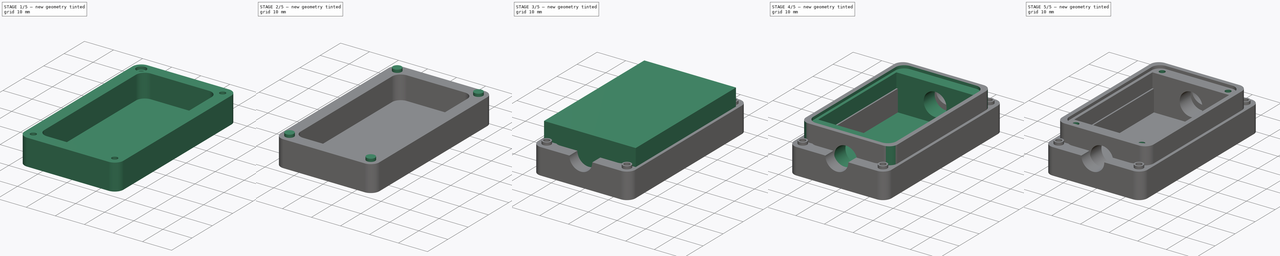
[diagram: build sequence overview — one tinted view per stage of 5, left to right]
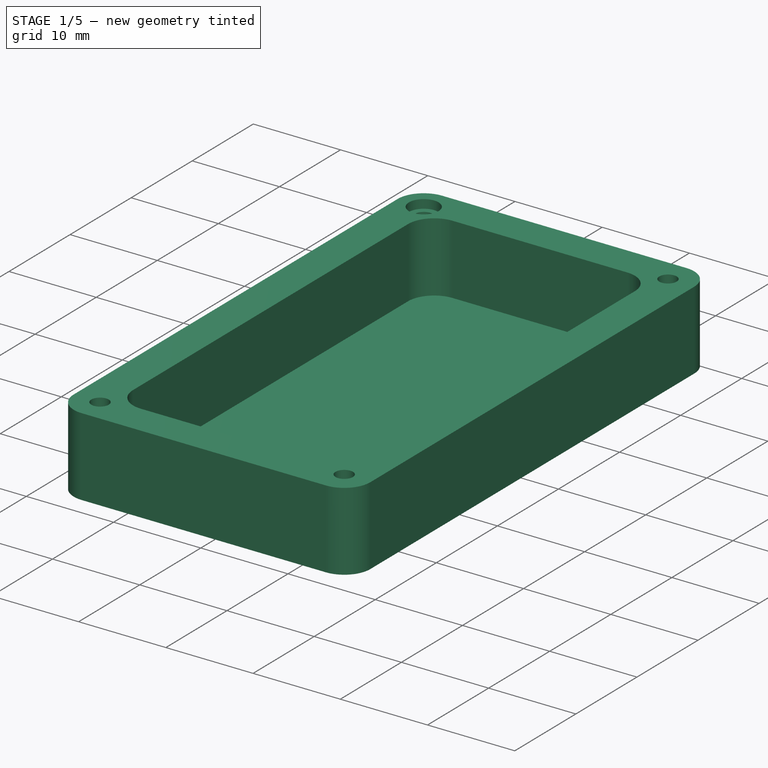
[diagram: stage 1 of 5 — iso view after this stage's code; geometry added in this stage tinted green]
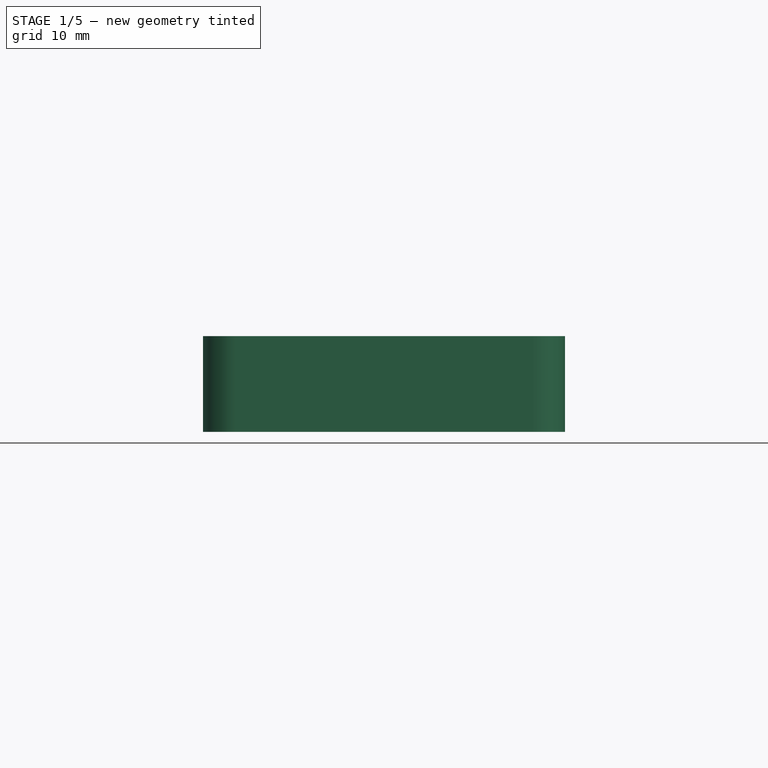
[diagram: stage 1 of 5 — front view after this stage's code; geometry added in this stage tinted green]
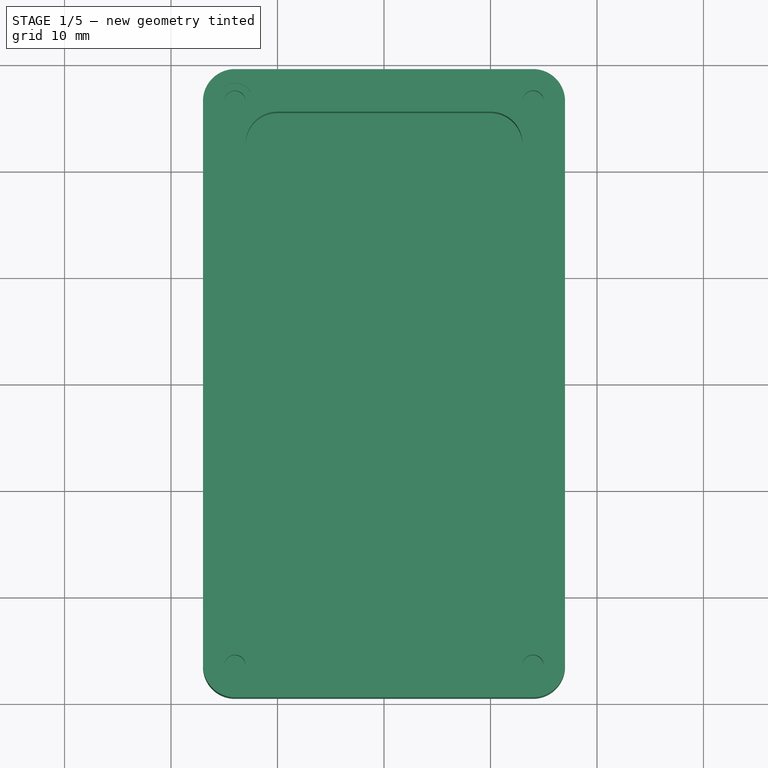
[diagram: stage 1 of 5 — top view after this stage's code; geometry added in this stage tinted green]
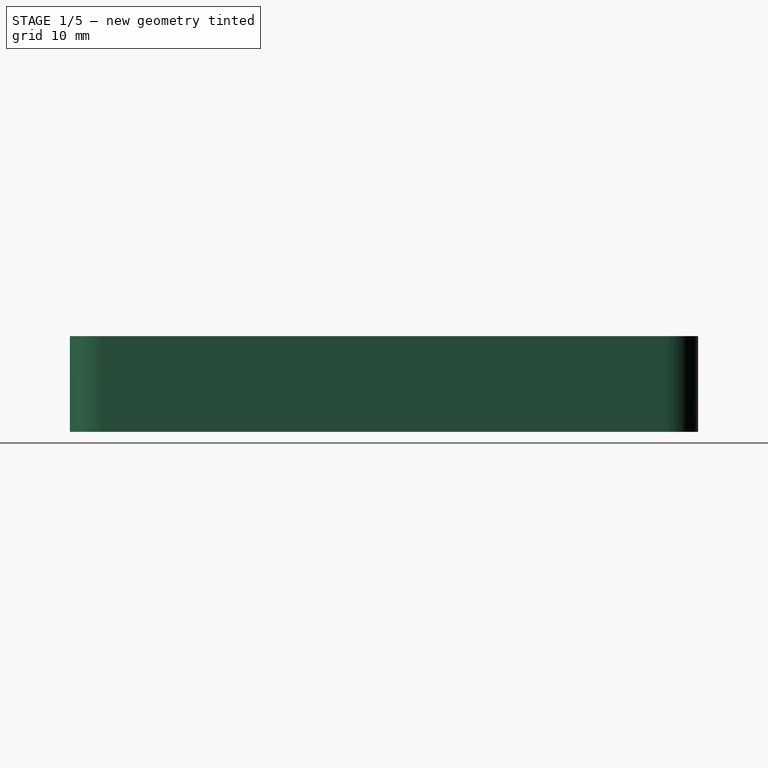
[diagram: stage 1 of 5 — right view after this stage's code; geometry added in this stage tinted green]
FCSTD DOCUMENT  (FreeCAD 0.17R13519 (Git))
Label: ZongDengKong-jwei-1.0
License: All rights reserved
LicenseURL: http://en.wikipedia.org/wiki/All_rights_reserved
objects: Sketcher::SketchObject×16, PartDesign::Mirrored×14, PartDesign::Pocket×12, PartDesign::MultiTransform×7, PartDesign::Pad×4, PartDesign::Fillet×4, PartDesign::Body×4, PartDesign::FeatureBase×1
note: 78 computed .brp shape members not serialized (recipe doc carries the construction recipe); baked Part::Feature solids carry a one-line shape summary decoded from their .brp

FEATURE [PartDesign::Body] Body
  Group = -> [Sketch,Pad,Sketch001,Pocket,Fillet,Sketch002,Pocket001,Fillet001,Sketch003,Pocket002,Sketch007,Pocket004,MultiTransform001,Mirrored002,Mirrored003]
  Origin = -> Origin
  Tip = -> MultiTransform001
FEATURE [Sketcher::SketchObject] Sketch008
  MapMode = 5
  Support = -> [XY_Plane002]
  sketch-geometry (4):
    g0: LineSegment StartX=-17 StartY=29.5 StartZ=0 EndX=17 EndY=29.5 EndZ=0
    g1: LineSegment StartX=17 StartY=29.5 StartZ=0 EndX=17 EndY=-29.5 EndZ=0
    g2: LineSegment StartX=17 StartY=-29.5 StartZ=0 EndX=-17 EndY=-29.5 EndZ=0
    g3: LineSegment StartX=-17 StartY=-29.5 StartZ=0 EndX=-17 EndY=29.5 EndZ=0
  constraints (12):
    c: Coincident(g0,g1)
    c: Coincident(g1,g2)
    c: Coincident(g2,g3)
    c: Coincident(g3,g0)
    c: Horizontal(g0)
    c: Horizontal(g2)
    c: Vertical(g1)
    c: Vertical(g3)
    c: DistanceX(g0,g0) = 34
    c: DistanceY(g3,g3) = 59
    c: DistanceX(g-2,g0) = -17
    c: DistanceY(g-1,g0) = 29.5
FEATURE [PartDesign::Pad] Pad002
  Length = 9
  Length2 = 100
  Profile = -> Sketch008
  Type = 0
FEATURE [Sketcher::SketchObject] Sketch009
  ExternalGeometry = -> [Pad002]
  MapMode = 5
  Placement = pos=(0,0,9) rot=(0,0,1;0rad)
  Support = -> [Pad002]
  sketch-geometry (4):
    g0: LineSegment StartX=-13 StartY=25.5 StartZ=0 EndX=13 EndY=25.5 EndZ=0
    g1: LineSegment StartX=13 StartY=25.5 StartZ=0 EndX=13 EndY=-25.5 EndZ=0
    g2: LineSegment StartX=13 StartY=-25.5 StartZ=0 EndX=-13 EndY=-25.5 EndZ=0
    g3: LineSegment StartX=-13 StartY=-25.5 StartZ=0 EndX=-13 EndY=25.5 EndZ=0
  constraints (12):
    c: Coincident(g0,g1)
    c: Coincident(g1,g2)
    c: Coincident(g2,g3)
    c: Coincident(g3,g0)
    c: Horizontal(g0)
    c: Horizontal(g2)
    c: Vertical(g1)
    c: Vertical(g3)
    c: Distance(g0,g-3) = 4
    c: Distance(g0,g-4) = 4
    c: Distance(g1,g-5) = 4
    c: Distance(g1,g-6) = 4
FEATURE [PartDesign::Pocket] Pocket005
  BaseFeature = -> Pad002
  Length = 8
  Length2 = 100
  Profile = -> Sketch009
  Type = 0
FEATURE [PartDesign::Fillet] Fillet003
  Base = -> Pocket005 [Edge17,Edge1,Edge2,Edge19,Edge8,Edge21,Edge23,Edge5]
  BaseFeature = -> Pocket005
  Radius = 3
FEATURE [Sketcher::SketchObject] Sketch010
  ExternalGeometry = -> [Fillet003]
  MapMode = 5
  Placement = pos=(0,0,9) rot=(0,0,1;0rad)
  Support = -> [Fillet003]
  sketch-geometry (1):
    g0: Circle CenterX=-14 CenterY=26.5 CenterZ=0 NormalX=0 NormalY=0 NormalZ=1 AngleXU=0 Radius=1
  constraints (3):
    c: Radius(g0) = 1
    c: Distance(g0,g-3) = 3
    c: Distance(g0,g-4) = 3
FEATURE [PartDesign::Pocket] Pocket006
  BaseFeature = -> Fillet003
  Length = 4
  Length2 = 100
  Profile = -> Sketch010
  Type = 0
FEATURE [PartDesign::Mirrored] Mirrored004
  MirrorPlane = -> Sketch010 [V_Axis]
FEATURE [PartDesign::Mirrored] Mirrored005
  MirrorPlane = -> Sketch010 [H_Axis]
FEATURE [PartDesign::MultiTransform] MultiTransform002
  BaseFeature = -> Pocket006
  Originals = -> [Pocket006]
  Transformations = -> [Mirrored004,Mirrored005]
FEATURE [Sketcher::SketchObject] Sketch011
  ExternalGeometry = -> [MultiTransform002]
  MapMode = 5
  Placement = pos=(0,0,9) rot=(0,0,1;0rad)
  Support = -> [MultiTransform002]
  sketch-geometry (1):
    g0: Circle CenterX=-14 CenterY=26.5 CenterZ=0 NormalX=0 NormalY=0 NormalZ=1 AngleXU=0 Radius=1.7
  constraints (2):
    c: Radius(g0) = 1.7
    c: Coincident(g0,g-3)
FEATURE [PartDesign::Pocket] Pocket007
  BaseFeature = -> MultiTransform002
  Length = 1
  Length2 = 100
  Profile = -> Sketch011
  Type = 0
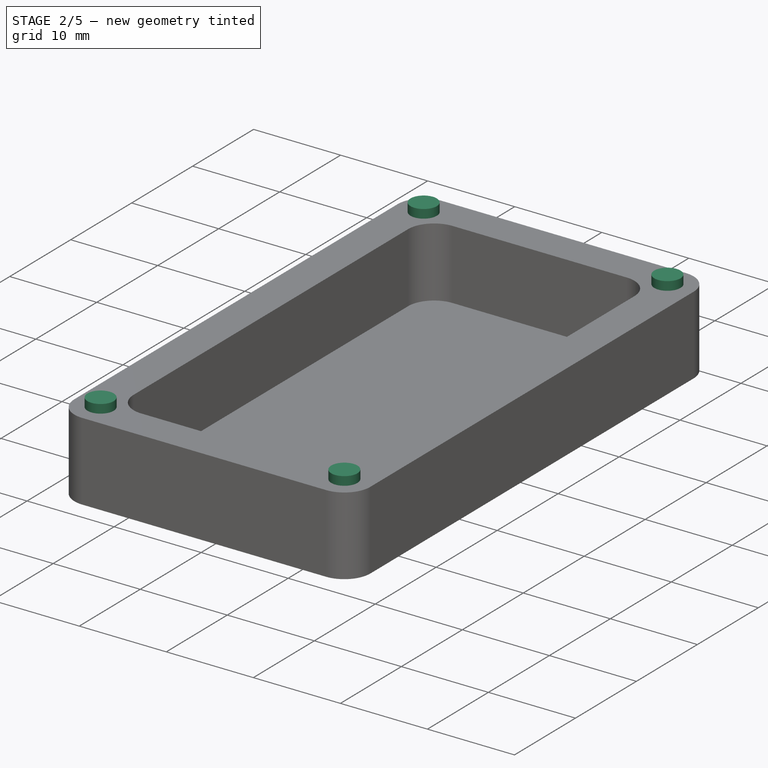
[diagram: stage 2 of 5 — iso view after this stage's code; geometry added in this stage tinted green]
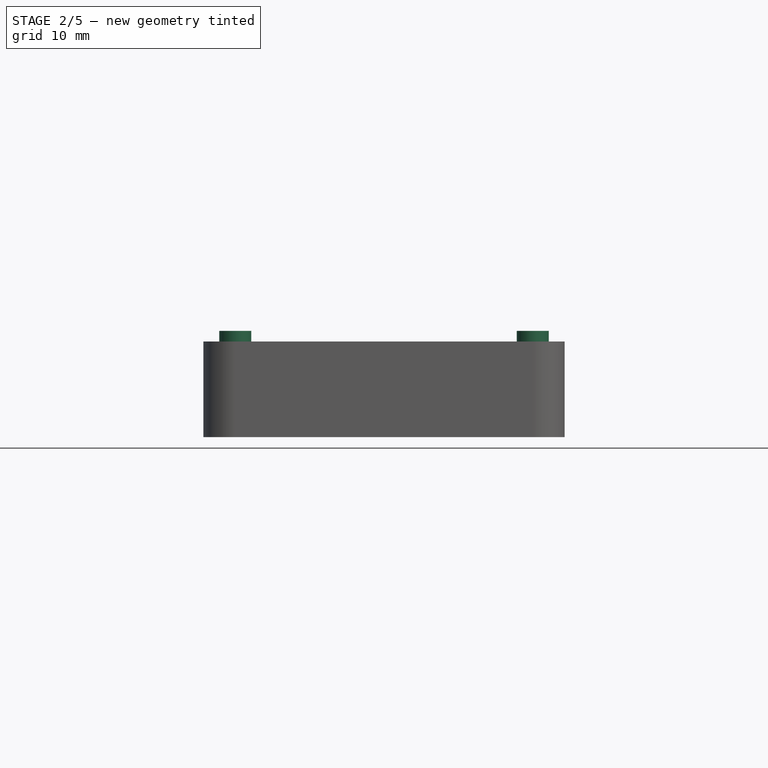
[diagram: stage 2 of 5 — front view after this stage's code; geometry added in this stage tinted green]
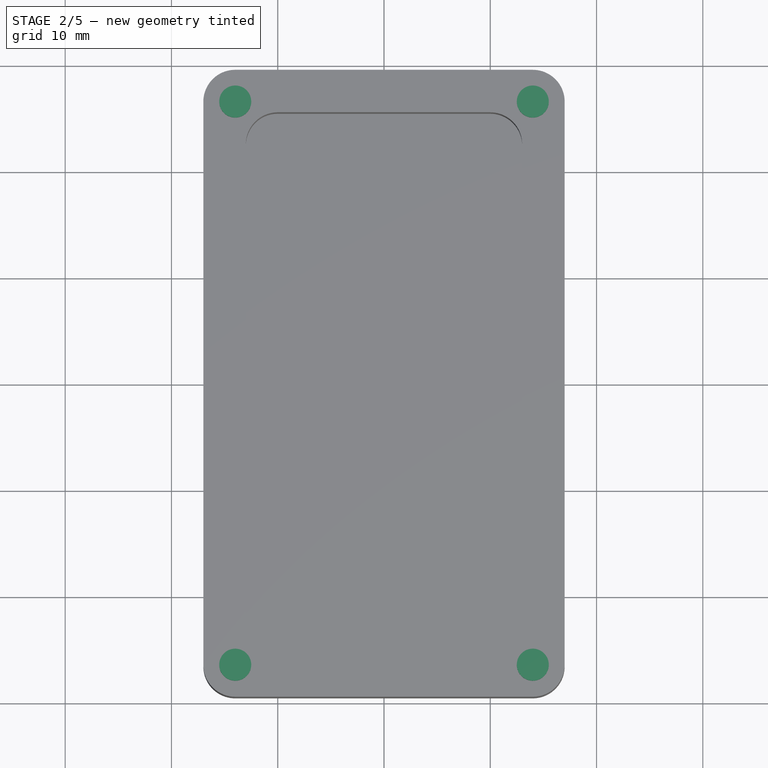
[diagram: stage 2 of 5 — top view after this stage's code; geometry added in this stage tinted green]
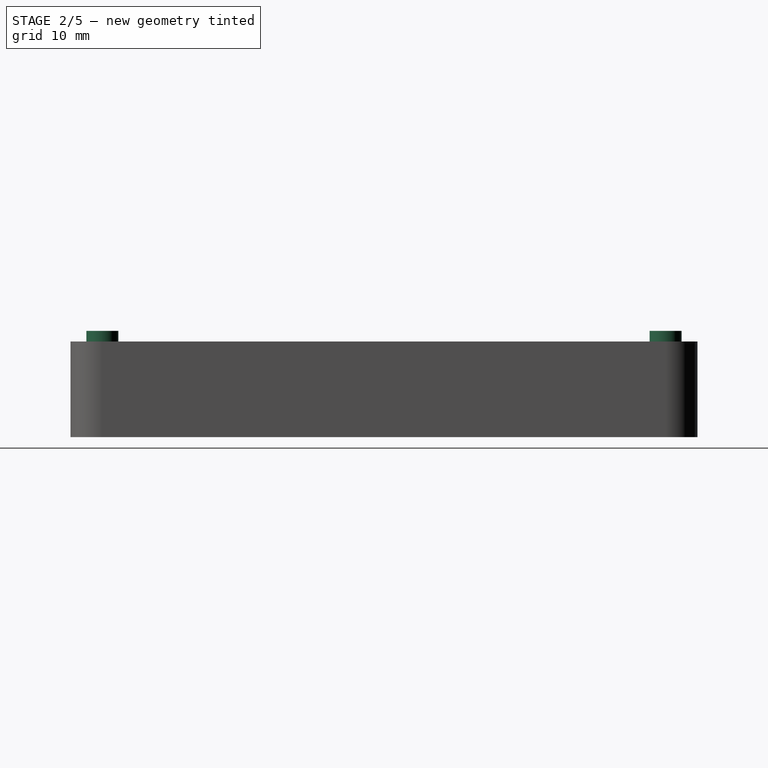
[diagram: stage 2 of 5 — right view after this stage's code; geometry added in this stage tinted green]
FEATURE [PartDesign::Mirrored] Mirrored006
  MirrorPlane = -> Sketch011 [V_Axis]
FEATURE [PartDesign::Mirrored] Mirrored007
  MirrorPlane = -> Sketch011 [H_Axis]
FEATURE [PartDesign::MultiTransform] MultiTransform003
  BaseFeature = -> Pocket007
  Originals = -> [Pocket007]
  Transformations = -> [Mirrored006,Mirrored007]
FEATURE [PartDesign::FeatureBase] BaseFeature
FEATURE [Sketcher::SketchObject] Sketch012
  ExternalGeometry = -> [BaseFeature]
  MapMode = 5
  Placement = pos=(0,0,9) rot=(0,0,1;0rad)
  Support = -> [BaseFeature]
  sketch-geometry (1):
    g0: Circle CenterX=-14 CenterY=26.5 CenterZ=0 NormalX=0 NormalY=0 NormalZ=1 AngleXU=0 Radius=1.50489
  constraints (2):
    c: Distance(g0,g-3) = 3
    c: Distance(g0,g-4) = 3
FEATURE [PartDesign::Pad] Pad003
  BaseFeature = -> BaseFeature
  Length = 1
  Length2 = 100
  Profile = -> Sketch012
  Type = 0
FEATURE [PartDesign::Mirrored] Mirrored008
  MirrorPlane = -> Sketch012 [V_Axis]
FEATURE [PartDesign::Mirrored] Mirrored009
  MirrorPlane = -> Sketch012 [H_Axis]
FEATURE [PartDesign::MultiTransform] MultiTransform004
  BaseFeature = -> Pad003
  Originals = -> [Pad003]
  Transformations = -> [Mirrored008,Mirrored009]
FEATURE [PartDesign::Body] Body003
  Group = -> [BaseFeature,Sketch012,Pad003,MultiTransform004,Mirrored008,Mirrored009,Sketch013,Pocket008,MultiTransform005,Mirrored010,Mirrored011,Sketch014,Pocket009,MultiTransform006,Mirrored012,Mirrored013,Sketch015,Pocket010]
  Origin = -> Origin003
  Placement = pos=(0,0,18) rot=(-1,0,0;3.14159rad)
  Tip = -> Pocket010
FEATURE [Sketcher::SketchObject] Sketch016
  ExternalGeometry = -> [MultiTransform003]
  MapMode = 5
  Placement = pos=(0,-29.5,0) rot=(1,0,0;1.5708rad)
  Support = -> [MultiTransform003]
  sketch-geometry (1):
    g0: Circle CenterX=0 CenterY=9 CenterZ=0 NormalX=0 NormalY=0 NormalZ=1 AngleXU=0 Radius=4
  constraints (3):
    c: Radius(g0) = 4
    c: PointOnObject(g0,g-2)
    c: PointOnObject(g0,g-3)
FEATURE [PartDesign::Pocket] Pocket011
  BaseFeature = -> MultiTransform003
  Length = 5
  Length2 = 100
  Profile = -> Sketch016
  Type = 1
FEATURE [PartDesign::Body] Body002
  Group = -> [Sketch008,Pad002,Sketch009,Pocket005,Fillet003,Sketch010,Pocket006,MultiTransform002,Mirrored004,Mirrored005,Sketch011,Pocket007,MultiTransform003,Mirrored006,Mirrored007,Sketch016,Pocket011]
  Origin = -> Origin002
  Tip = -> Pocket011
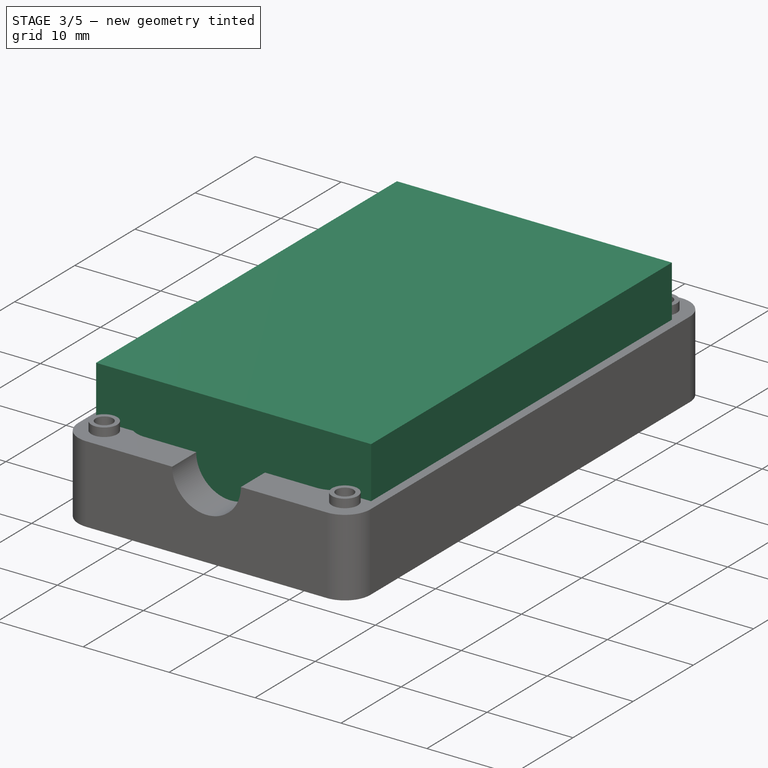
[diagram: stage 3 of 5 — iso view after this stage's code; geometry added in this stage tinted green]
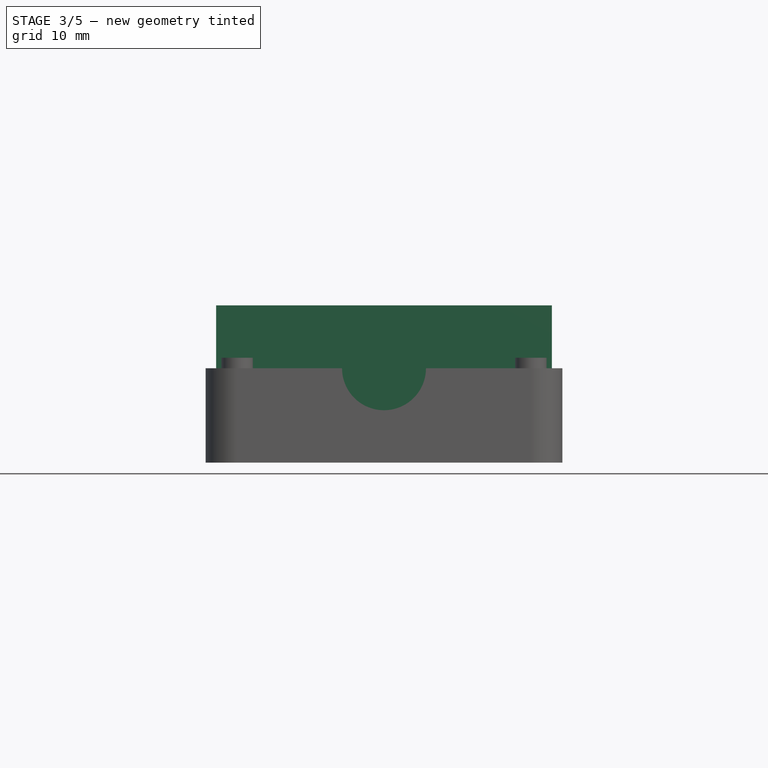
[diagram: stage 3 of 5 — front view after this stage's code; geometry added in this stage tinted green]
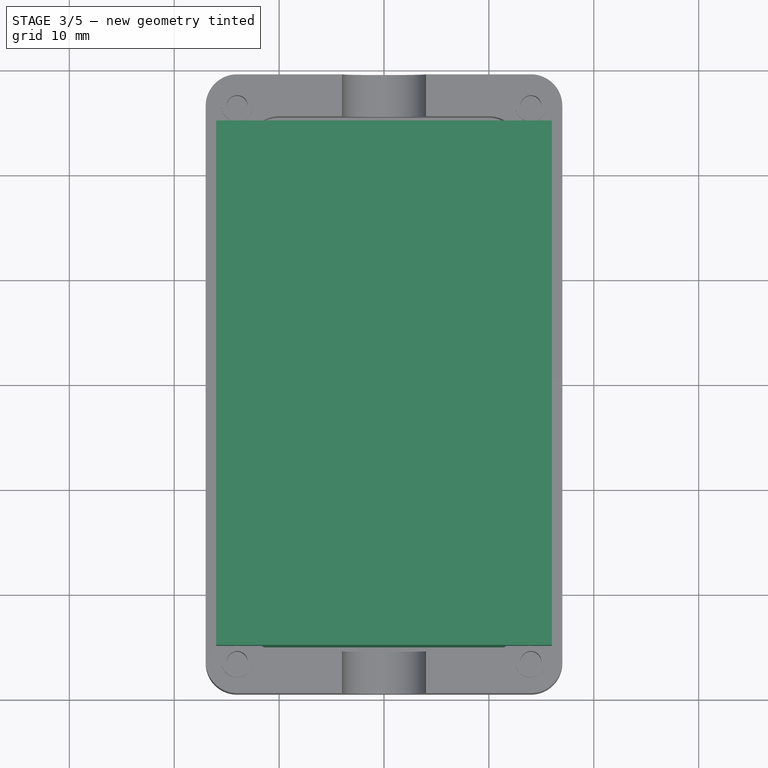
[diagram: stage 3 of 5 — top view after this stage's code; geometry added in this stage tinted green]
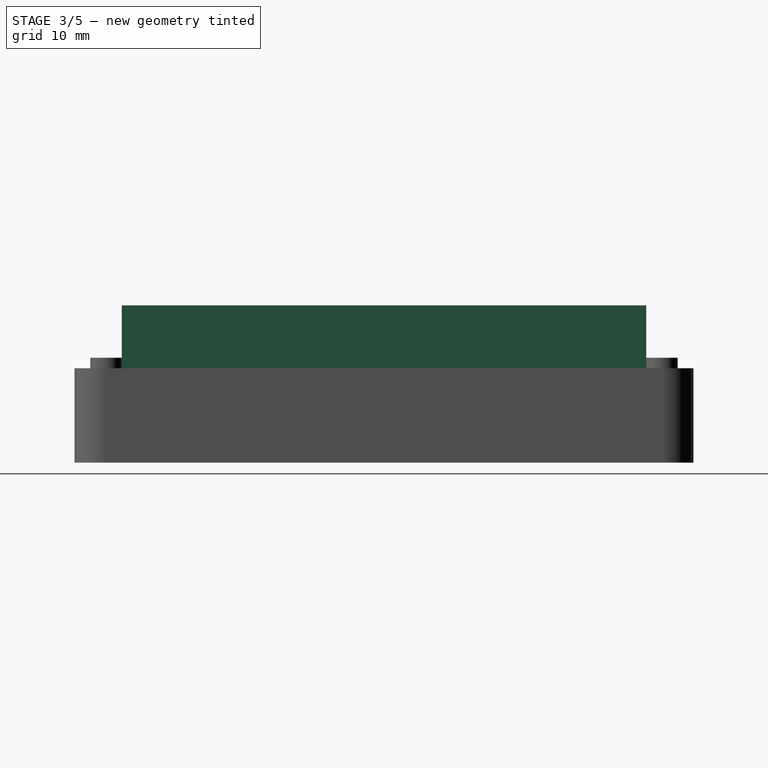
[diagram: stage 3 of 5 — right view after this stage's code; geometry added in this stage tinted green]
FEATURE [Sketcher::SketchObject] Sketch
  MapMode = 5
  Support = -> [XY_Plane]
  sketch-geometry (4):
    g0: LineSegment StartX=-16 StartY=25 StartZ=0 EndX=16 EndY=25 EndZ=0
    g1: LineSegment StartX=16 StartY=25 StartZ=0 EndX=16 EndY=-25 EndZ=0
    g2: LineSegment StartX=16 StartY=-25 StartZ=0 EndX=-16 EndY=-25 EndZ=0
    g3: LineSegment StartX=-16 StartY=-25 StartZ=0 EndX=-16 EndY=25 EndZ=0
  constraints (12):
    c: Coincident(g0,g1)
    c: Coincident(g1,g2)
    c: Coincident(g2,g3)
    c: Coincident(g3,g0)
    c: Horizontal(g0)
    c: Horizontal(g2)
    c: Vertical(g1)
    c: Vertical(g3)
    c: DistanceX(g0,g0) = 32
    c: DistanceY(g3,g3) = 50
    c: DistanceY(g-1,g0) = 25
    c: DistanceX(g-2,g0) = 16
FEATURE [PartDesign::Pad] Pad
  Length = 15
  Length2 = 100
  Profile = -> Sketch
  Type = 0
FEATURE [Sketcher::SketchObject] Sketch013
  ExternalGeometry = -> [MultiTransform004]
  MapMode = 5
  Placement = pos=(0,0,10) rot=(0,0,1;0rad)
  Support = -> [MultiTransform004]
  sketch-geometry (1):
    g0: Circle CenterX=-14 CenterY=26.5 CenterZ=0 NormalX=0 NormalY=0 NormalZ=1 AngleXU=0 Radius=1
  constraints (2):
    c: Radius(g0) = 1
    c: Coincident(g0,g-3)
FEATURE [PartDesign::Pocket] Pocket008
  BaseFeature = -> MultiTransform004
  Length = 5
  Length2 = 100
  Profile = -> Sketch013
  Type = 1
FEATURE [PartDesign::Mirrored] Mirrored010
  MirrorPlane = -> Sketch013 [V_Axis]
FEATURE [PartDesign::Mirrored] Mirrored011
  MirrorPlane = -> Sketch013 [H_Axis]
FEATURE [PartDesign::MultiTransform] MultiTransform005
  BaseFeature = -> Pocket008
  Originals = -> [Pocket008]
  Transformations = -> [Mirrored010,Mirrored011]
FEATURE [Sketcher::SketchObject] Sketch014
  ExternalGeometry = -> [MultiTransform005]
  MapMode = 5
  Placement = pos=(0,0,0) rot=(1,0,0;3.14159rad)
  Support = -> [MultiTransform005]
  sketch-geometry (1):
    g0: Circle CenterX=-14 CenterY=26.5 CenterZ=0 NormalX=0 NormalY=0 NormalZ=1 AngleXU=0 Radius=2
  constraints (2):
    c: Radius(g0) = 2
    c: Coincident(g0,g-3)
FEATURE [PartDesign::Pocket] Pocket009
  BaseFeature = -> MultiTransform005
  Length = 3
  Length2 = 100
  Profile = -> Sketch014
  Type = 0
FEATURE [PartDesign::Mirrored] Mirrored012
  MirrorPlane = -> Sketch014 [V_Axis]
FEATURE [PartDesign::Mirrored] Mirrored013
  MirrorPlane = -> Sketch014 [H_Axis]
FEATURE [PartDesign::MultiTransform] MultiTransform006
  BaseFeature = -> Pocket009
  Originals = -> [Pocket009]
  Transformations = -> [Mirrored012,Mirrored013]
FEATURE [Sketcher::SketchObject] Sketch015
  ExternalGeometry = -> [MultiTransform006]
  MapMode = 5
  Placement = pos=(0,29.5,0) rot=(0,0.707107,0.707107;3.14159rad)
  Support = -> [MultiTransform006]
  sketch-geometry (1):
    g0: Circle CenterX=0 CenterY=9 CenterZ=0 NormalX=0 NormalY=0 NormalZ=1 AngleXU=0 Radius=4
  constraints (3):
    c: Radius(g0) = 4
    c: PointOnObject(g0,g-3)
    c: PointOnObject(g0,g-2)
FEATURE [PartDesign::Pocket] Pocket010
  BaseFeature = -> MultiTransform006
  Length = 5
  Length2 = 100
  Profile = -> Sketch015
  Type = 1
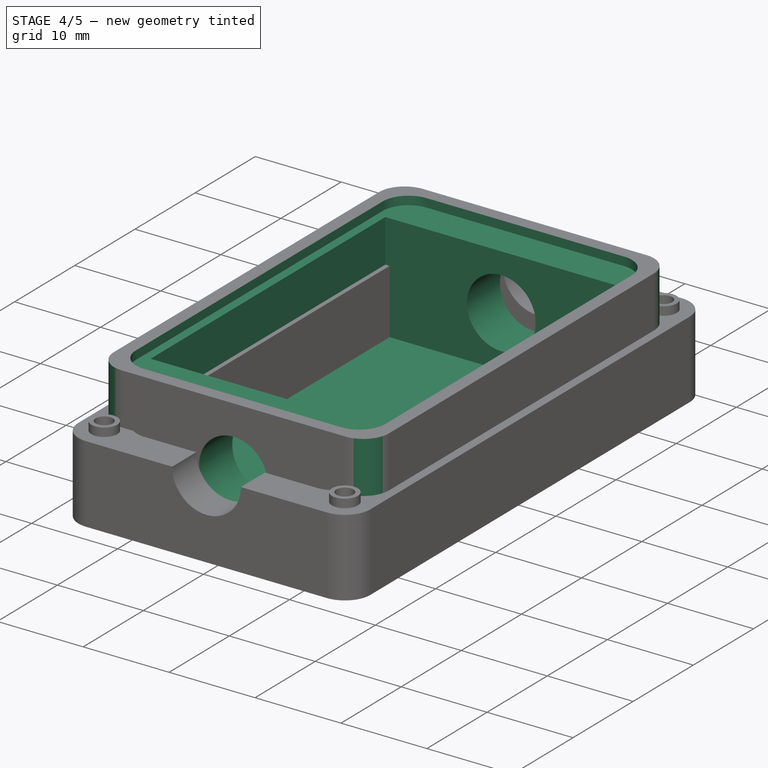
[diagram: stage 4 of 5 — iso view after this stage's code; geometry added in this stage tinted green]
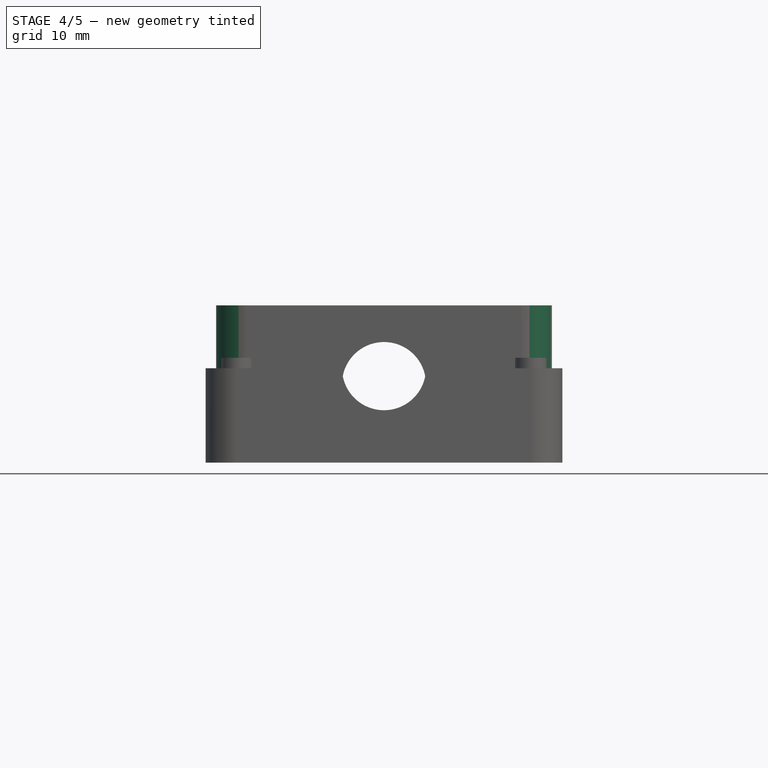
[diagram: stage 4 of 5 — front view after this stage's code; geometry added in this stage tinted green]
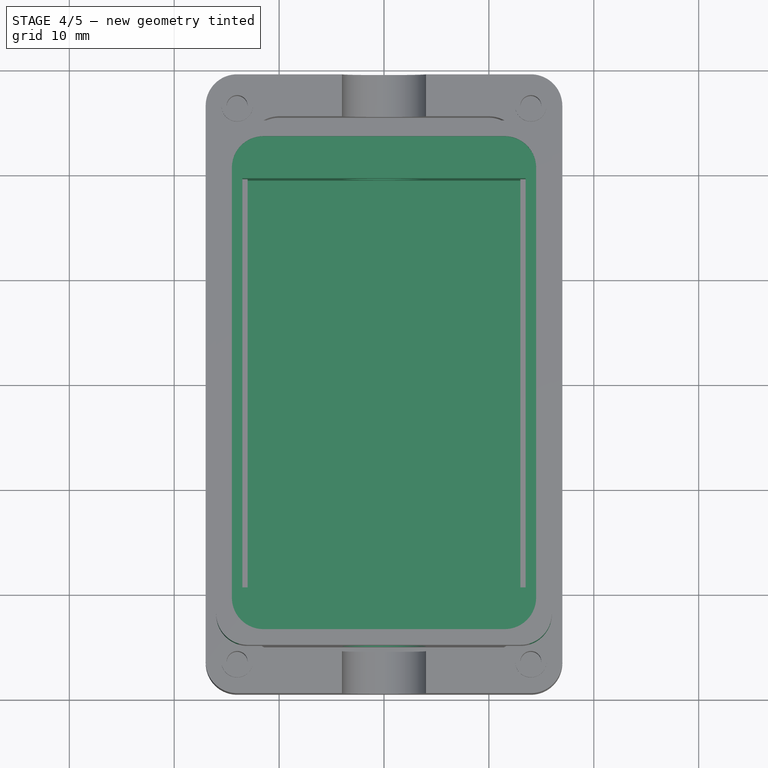
[diagram: stage 4 of 5 — top view after this stage's code; geometry added in this stage tinted green]
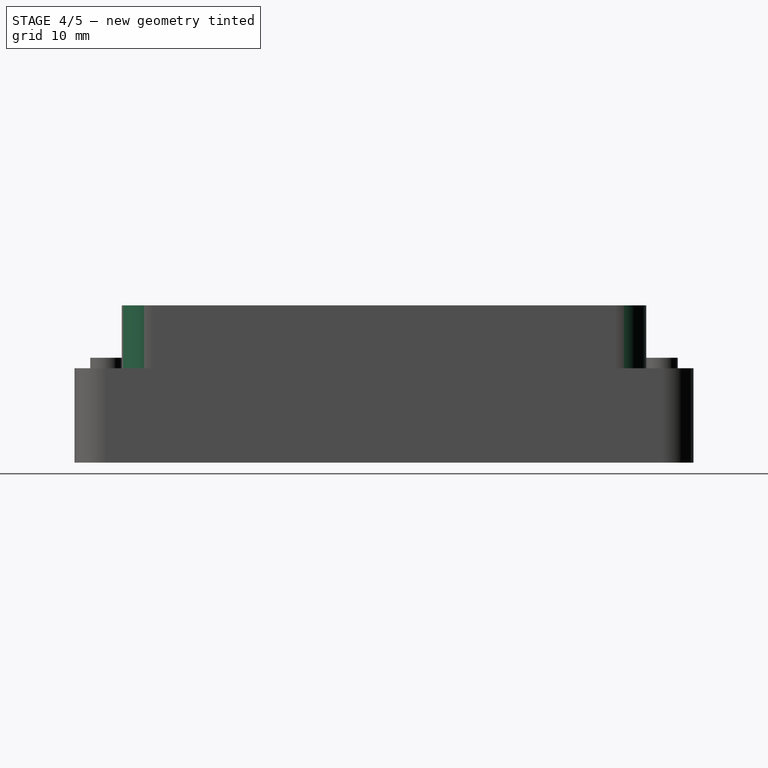
[diagram: stage 4 of 5 — right view after this stage's code; geometry added in this stage tinted green]
FEATURE [Sketcher::SketchObject] Sketch001
  ExternalGeometry = -> [Pad]
  MapMode = 5
  Placement = pos=(0,0,15) rot=(0,0,1;0rad)
  Support = -> [Pad]
  sketch-geometry (4):
    g0: LineSegment StartX=-13.5 StartY=19.5 StartZ=0 EndX=13.5 EndY=19.5 EndZ=0
    g1: LineSegment StartX=13.5 StartY=19.5 StartZ=0 EndX=13.5 EndY=-19.5 EndZ=0
    g2: LineSegment StartX=13.5 StartY=-19.5 StartZ=0 EndX=-13.5 EndY=-19.5 EndZ=0
    g3: LineSegment StartX=-13.5 StartY=-19.5 StartZ=0 EndX=-13.5 EndY=19.5 EndZ=0
  constraints (12):
    c: Coincident(g0,g1)
    c: Coincident(g1,g2)
    c: Coincident(g2,g3)
    c: Coincident(g3,g0)
    c: Horizontal(g0)
    c: Horizontal(g2)
    c: Vertical(g1)
    c: Vertical(g3)
    c: DistanceX(g0,g0) = 27
    c: DistanceY(g3,g3) = 39
    c: Distance(g2,g-3) = 2.5
    c: Distance(g2,g-4) = 5.5
FEATURE [PartDesign::Pocket] Pocket
  BaseFeature = -> Pad
  Length = 13.5
  Length2 = 100
  Profile = -> Sketch001
  Type = 0
FEATURE [PartDesign::Fillet] Fillet
  Base = -> Pocket [Edge5,Edge8,Edge1,Edge2]
  BaseFeature = -> Pocket
  Radius = 3
FEATURE [Sketcher::SketchObject] Sketch002
  ExternalGeometry = -> [Fillet]
  MapMode = 5
  Placement = pos=(0,0,15) rot=(0,0,1;0rad)
  Support = -> [Fillet]
  sketch-geometry (4):
    g0: LineSegment StartX=-14.5 StartY=23.5 StartZ=0 EndX=14.5 EndY=23.5 EndZ=0
    g1: LineSegment StartX=14.5 StartY=23.5 StartZ=0 EndX=14.5 EndY=-23.5 EndZ=0
    g2: LineSegment StartX=14.5 StartY=-23.5 StartZ=0 EndX=-14.5 EndY=-23.5 EndZ=0
    g3: LineSegment StartX=-14.5 StartY=-23.5 StartZ=0 EndX=-14.5 EndY=23.5 EndZ=0
  constraints (12):
    c: Coincident(g0,g1)
    c: Coincident(g1,g2)
    c: Coincident(g2,g3)
    c: Coincident(g3,g0)
    c: Horizontal(g0)
    c: Horizontal(g2)
    c: Vertical(g1)
    c: Vertical(g3)
    c: DistanceX(g0,g0) = 29
    c: Distance(g-4,g3) = 1
    c: Distance(g-5,g2) = 1.5
    c: DistanceY(g3,g3) = 47
FEATURE [PartDesign::Pocket] Pocket001
  BaseFeature = -> Fillet
  Length = 1
  Length2 = 100
  Profile = -> Sketch002
  Type = 0
FEATURE [PartDesign::Fillet] Fillet001
  Base = -> Pocket001 [Edge29,Edge31,Edge35,Edge33]
  BaseFeature = -> Pocket001
  Radius = 3
FEATURE [Sketcher::SketchObject] Sketch003
  ExternalGeometry = -> [Fillet001]
  MapMode = 5
  Placement = pos=(0,-25,0) rot=(1,0,0;1.5708rad)
  Support = -> [Fillet001]
  sketch-geometry (1):
    g0: Circle CenterX=0 CenterY=7.5 CenterZ=0 NormalX=0 NormalY=0 NormalZ=1 AngleXU=0 Radius=4
  constraints (3):
    c: Radius(g0) = 4
    c: PointOnObject(g0,g-2)
    c: Distance(g-1,g0) = 7.5
FEATURE [PartDesign::Pocket] Pocket002
  BaseFeature = -> Fillet001
  Length = 5
  Length2 = 100
  Profile = -> Sketch003
  Type = 1
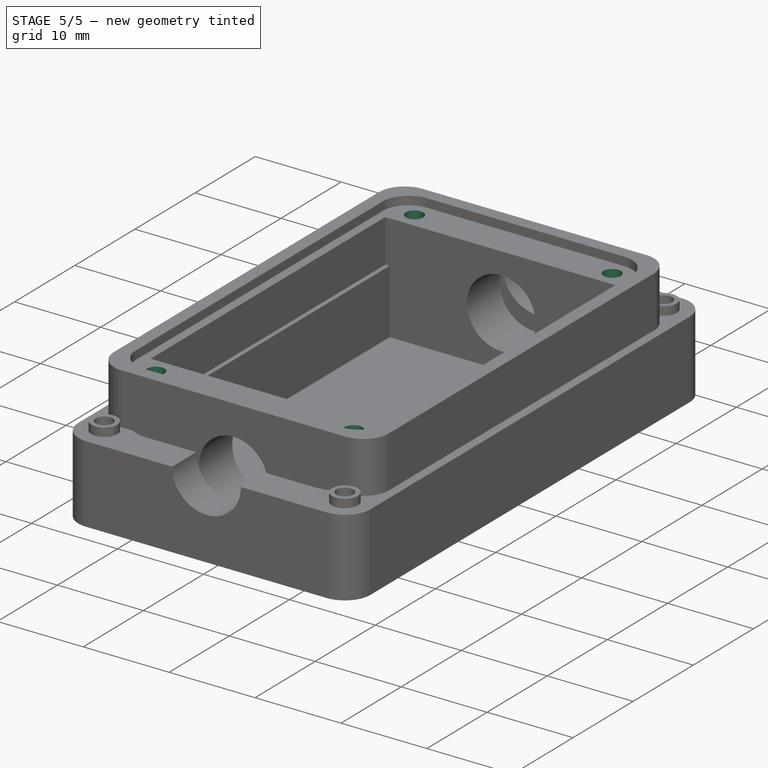
[diagram: stage 5 of 5 — iso view after this stage's code; geometry added in this stage tinted green]
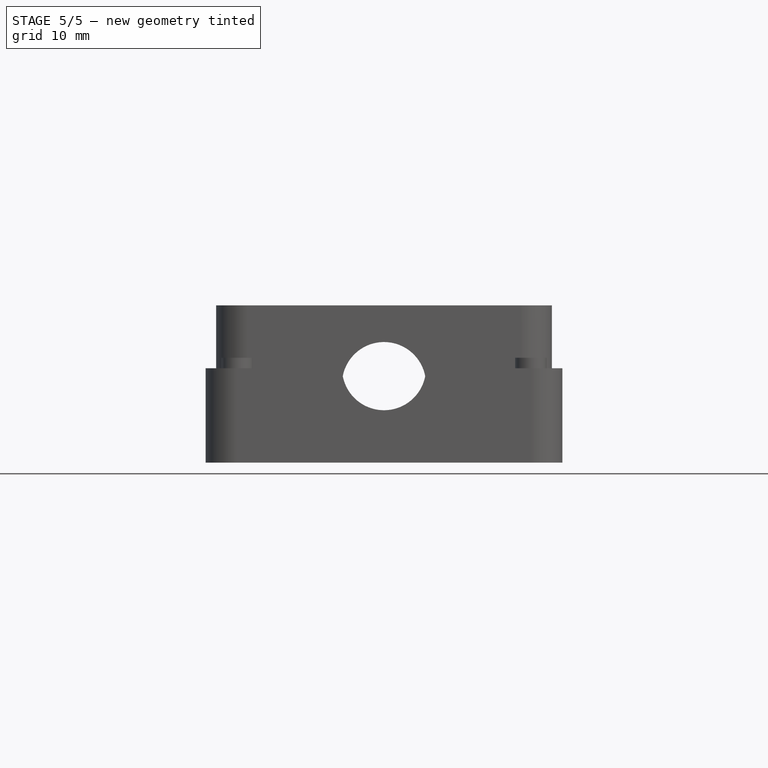
[diagram: stage 5 of 5 — front view after this stage's code; geometry added in this stage tinted green]
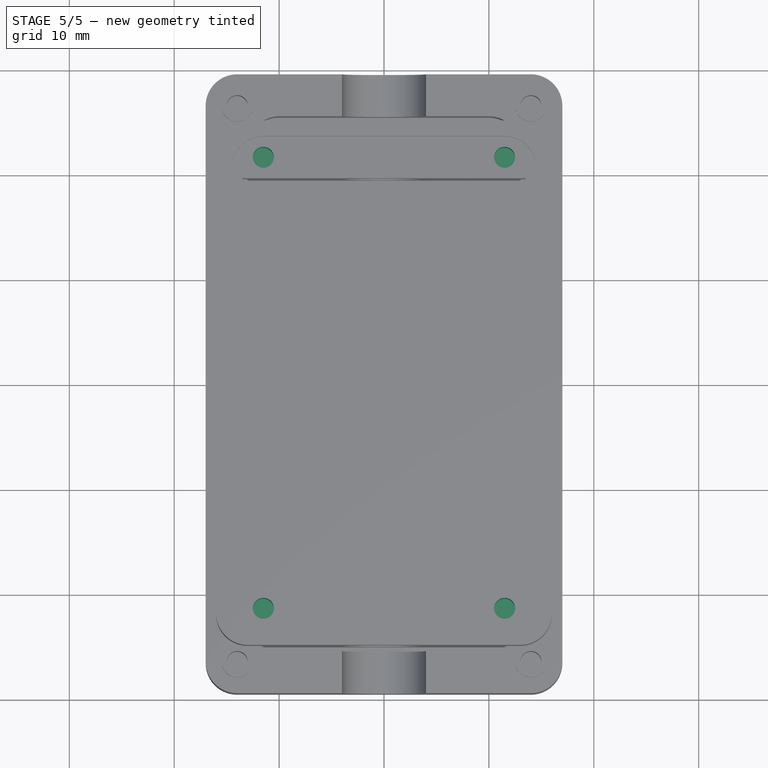
[diagram: stage 5 of 5 — top view after this stage's code; geometry added in this stage tinted green]
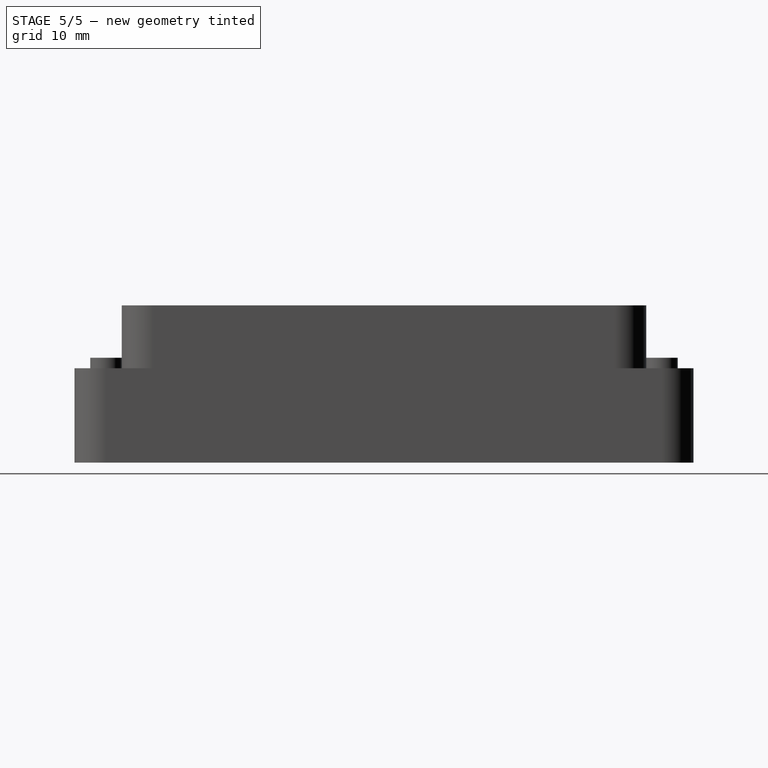
[diagram: stage 5 of 5 — right view after this stage's code; geometry added in this stage tinted green]
FEATURE [Sketcher::SketchObject] Sketch005
  MapMode = 5
  Support = -> [XY_Plane001]
  sketch-geometry (4):
    g0: LineSegment StartX=-14.5 StartY=23.5 StartZ=0 EndX=14.5 EndY=23.5 EndZ=0
    g1: LineSegment StartX=14.5 StartY=23.5 StartZ=0 EndX=14.5 EndY=-23.5 EndZ=0
    g2: LineSegment StartX=14.5 StartY=-23.5 StartZ=0 EndX=-14.5 EndY=-23.5 EndZ=0
    g3: LineSegment StartX=-14.5 StartY=-23.5 StartZ=0 EndX=-14.5 EndY=23.5 EndZ=0
  constraints (12):
    c: Coincident(g0,g1)
    c: Coincident(g1,g2)
    c: Coincident(g2,g3)
    c: Coincident(g3,g0)
    c: Horizontal(g0)
    c: Horizontal(g2)
    c: Vertical(g1)
    c: Vertical(g3)
    c: DistanceY(g3,g3) = 47
    c: DistanceX(g0,g0) = 29
    c: DistanceY(g-1,g0) = 23.5
    c: DistanceX(g-2,g0) = -14.5
FEATURE [PartDesign::Pad] Pad001
  Length = 1
  Length2 = 100
  Profile = -> Sketch005
  Type = 0
FEATURE [Sketcher::SketchObject] Sketch006
  ExternalGeometry = -> [Pad001]
  MapMode = 5
  Placement = pos=(0,0,1) rot=(0,0,1;0rad)
  Support = -> [Pad001]
  sketch-geometry (1):
    g0: Circle CenterX=-11.5 CenterY=21.5 CenterZ=0 NormalX=0 NormalY=0 NormalZ=1 AngleXU=0 Radius=1
  constraints (3):
    c: Radius(g0) = 1
    c: Distance(g0,g-4) = 3
    c: Distance(g0,g-3) = 2
FEATURE [PartDesign::Pocket] Pocket003
  BaseFeature = -> Pad001
  Length = 5
  Length2 = 100
  Profile = -> Sketch006
  Type = 1
FEATURE [PartDesign::Mirrored] Mirrored
  MirrorPlane = -> Sketch006 [V_Axis]
FEATURE [PartDesign::Mirrored] Mirrored001
  MirrorPlane = -> Sketch006 [H_Axis]
FEATURE [PartDesign::MultiTransform] MultiTransform
  BaseFeature = -> Pocket003
  Originals = -> [Pocket003]
  Transformations = -> [Mirrored,Mirrored001]
FEATURE [PartDesign::Fillet] Fillet002
  Base = -> MultiTransform [Edge5,Edge8,Edge1,Edge2]
  BaseFeature = -> MultiTransform
  Radius = 3
FEATURE [PartDesign::Body] Body001
  Group = -> [Sketch005,Pad001,Sketch006,Pocket003,MultiTransform,Mirrored,Mirrored001,Fillet002]
  Origin = -> Origin001
  Placement = pos=(0,0,14) rot=(0,0,1;0rad)
  Tip = -> Fillet002
FEATURE [Sketcher::SketchObject] Sketch007
  ExternalGeometry = -> [Pocket002]
  MapMode = 5
  Placement = pos=(0,0,14) rot=(0,0,1;0rad)
  Support = -> [Pocket002]
  sketch-geometry (1):
    g0: Circle CenterX=-11.5 CenterY=21.5 CenterZ=0 NormalX=0 NormalY=0 NormalZ=1 AngleXU=0 Radius=1
  constraints (3):
    c: Radius(g0) = 1
    c: Distance(g0,g-5) = 3
    c: Distance(g0,g-6) = 2
FEATURE [PartDesign::Pocket] Pocket004
  BaseFeature = -> Pocket002
  Length = 5
  Length2 = 100
  Profile = -> Sketch007
  Type = 0
FEATURE [PartDesign::Mirrored] Mirrored002
  MirrorPlane = -> Sketch007 [V_Axis]
FEATURE [PartDesign::Mirrored] Mirrored003
  MirrorPlane = -> Sketch007 [H_Axis]
FEATURE [PartDesign::MultiTransform] MultiTransform001
  BaseFeature = -> Pocket004
  Originals = -> [Pocket004]
  Transformations = -> [Mirrored002,Mirrored003]
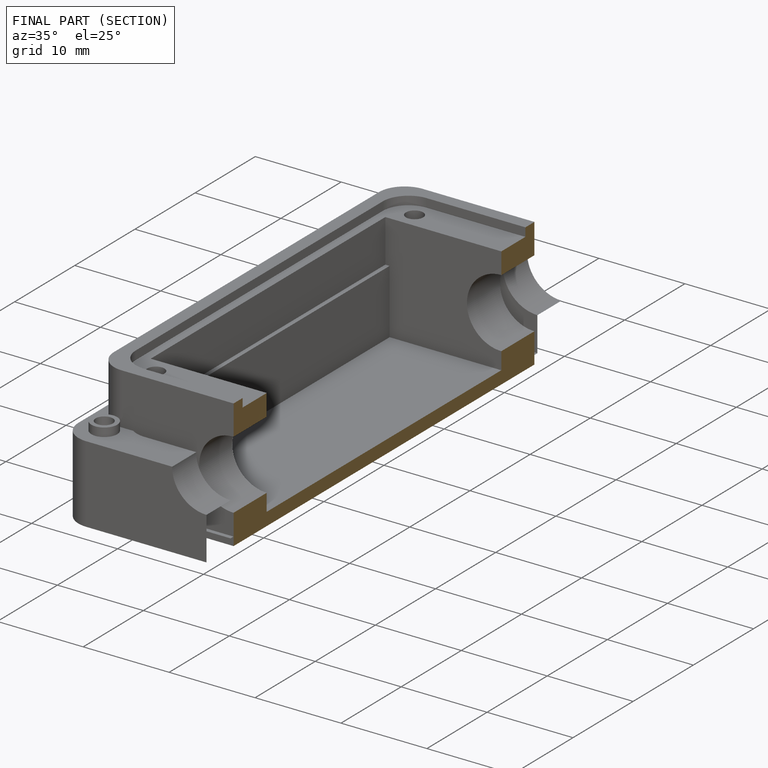
[diagram: finished part — half-section view (interior)]
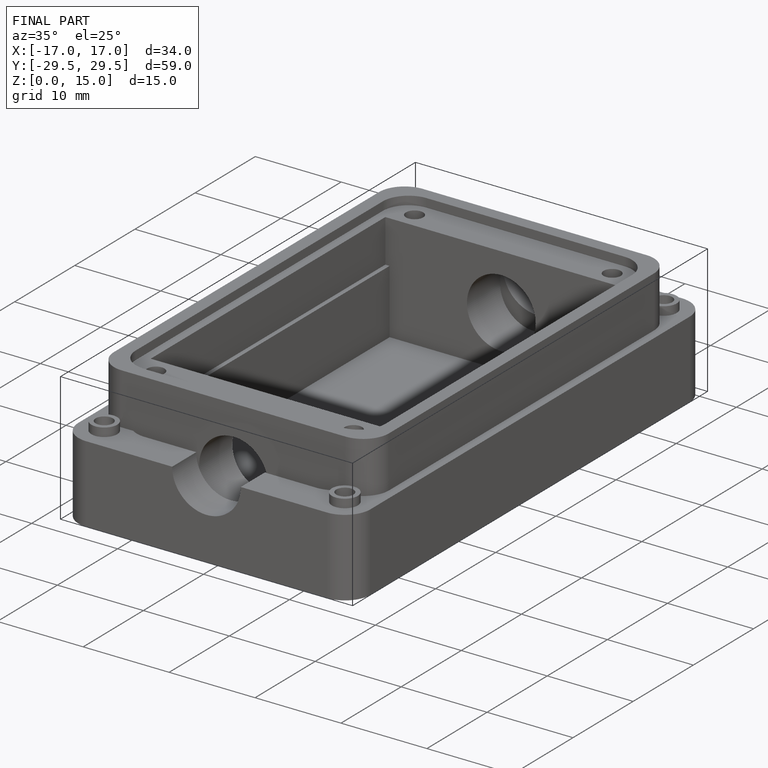
[diagram: finished part — iso view with bounding-box wireframe]
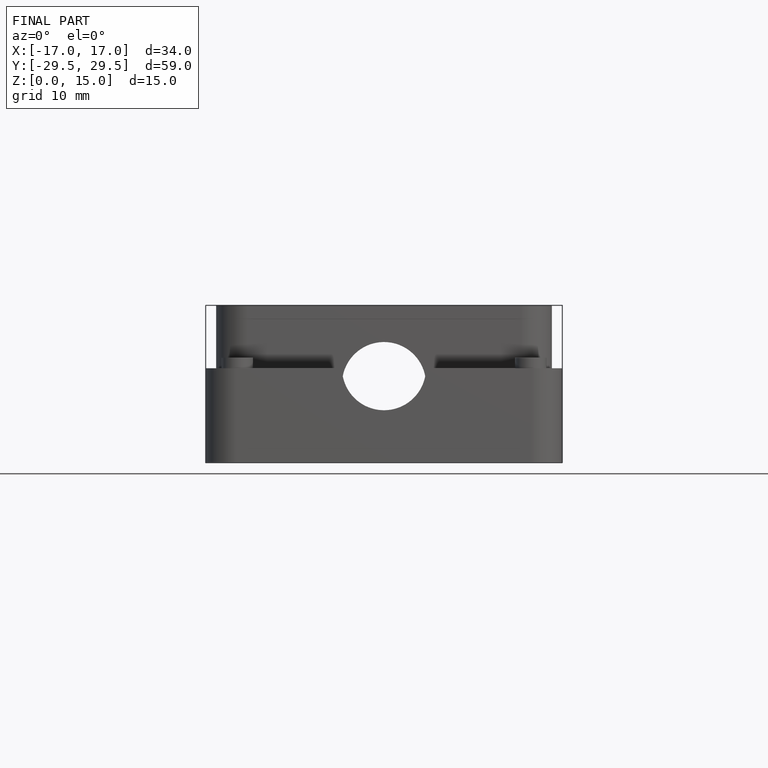
[diagram: finished part — front view with bounding-box wireframe]
